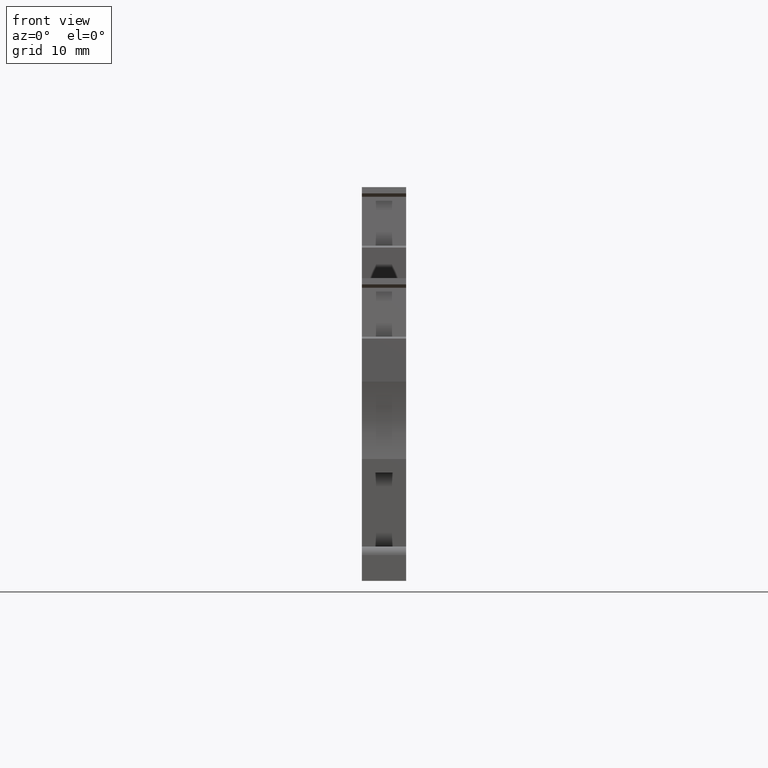
[diagram: clean part render]
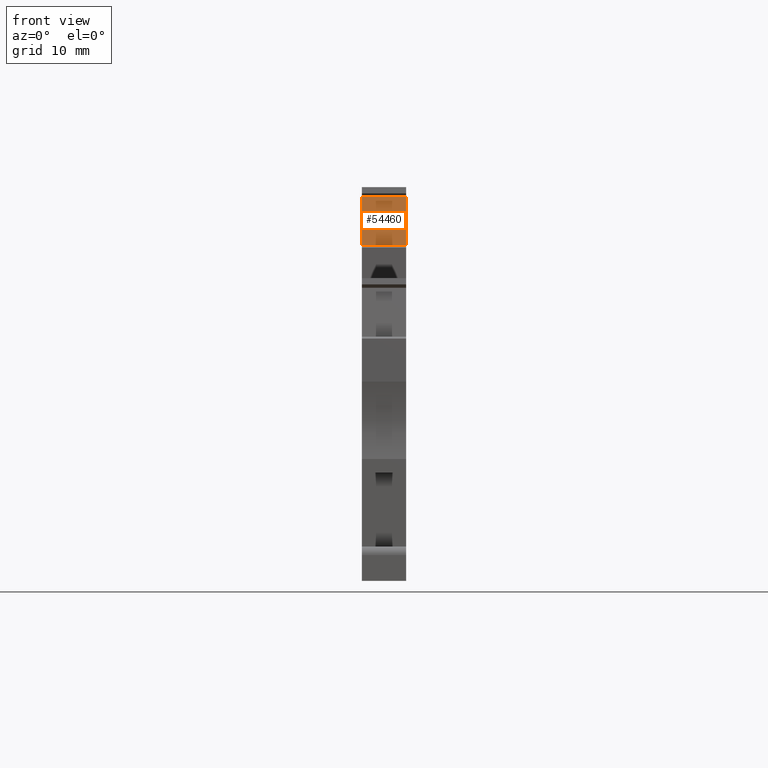
[diagram: same view with one face highlighted and labeled with its STEP entity id]
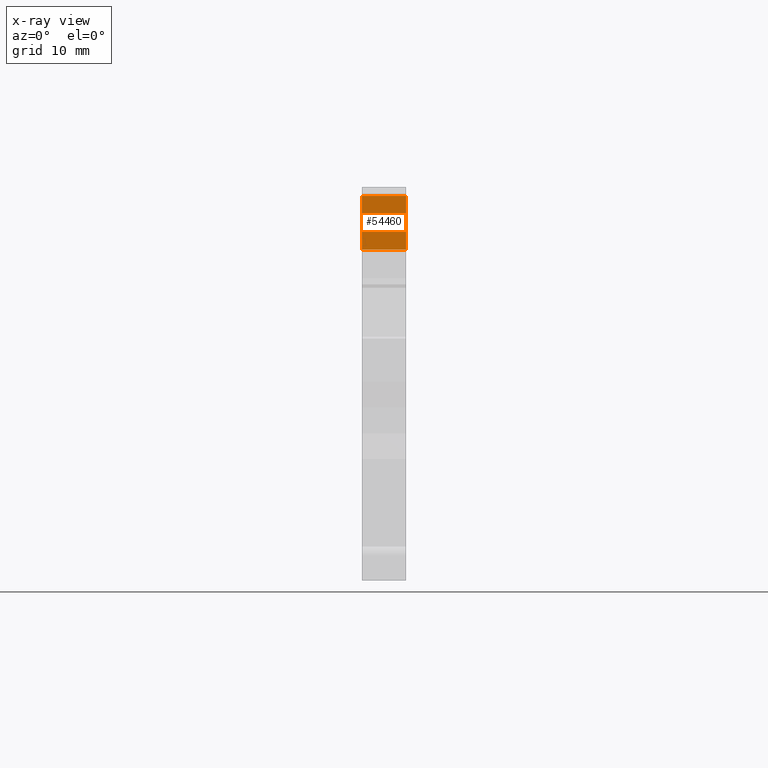
[diagram: x-ray of the same camera — body ghosted, the highlighted face saturated]
A machine part, front view. The second image highlights one B-rep face of the part: STEP entity #54460.
The next image is the same camera in x-ray: the body ghosted, the highlighted face saturated — about 0% of this face is hidden behind the body in this view.
In plain terms, the highlighted planar face has unit normal (-0, -0.9848, 0.1736).
Its self-contained STEP definition (entity closure, byte-faithful):
#2180=CARTESIAN_POINT('',(151.456226476328,41.3083312568005,48.52));
#2190=VERTEX_POINT('',#2180);
#2220=CARTESIAN_POINT('',(141.496435717659,-15.176449,48.52));
#2230=DIRECTION('',(0.173648177667041,0.984807753012189,0.));
#2240=VECTOR('',#2230,1.);
#2250=LINE('',#2220,#2240);
#2260=CARTESIAN_POINT('',(150.357901752584,35.0794222189993,48.52));
#2270=VERTEX_POINT('',#2260);
#2280=EDGE_CURVE('',#2270,#2190,#2250,.T.);
#12030=CARTESIAN_POINT('',(150.357901752584,35.0794222189993,
53.6699999999994));
#12040=VERTEX_POINT('',#12030);
#12070=CARTESIAN_POINT('',(141.496435717659,-15.176449,53.6699999999994)
);
#12080=DIRECTION('',(0.173648177667041,0.984807753012189,0.));
#12090=VECTOR('',#12080,1.);
#12100=LINE('',#12070,#12090);
#12110=CARTESIAN_POINT('',(151.456226476328,41.3083312568005,
53.6699999999994));
#12120=VERTEX_POINT('',#12110);
#12130=EDGE_CURVE('',#12040,#12120,#12100,.T.);
#53870=CARTESIAN_POINT('',(150.357901752584,35.0794222189993,53.67));
#53880=DIRECTION('',(0.,0.,-1.));
#53890=VECTOR('',#53880,1.);
#53900=LINE('',#53870,#53890);
#53910=EDGE_CURVE('',#12040,#2270,#53900,.T.);
#54300=CARTESIAN_POINT('',(151.369402387494,40.8159273802915,
53.6699999999994));
#54310=DIRECTION('',(-0.984807753012189,0.173648177667041,0.));
#54320=DIRECTION('',(0.173648177667041,0.984807753012189,0.));
#54330=AXIS2_PLACEMENT_3D('',#54300,#54310,#54320);
#54340=PLANE('',#54330);
#54350=CARTESIAN_POINT('',(151.456226476328,41.3083312568005,53.67));
#54360=DIRECTION('',(0.,0.,-1.));
#54370=VECTOR('',#54360,1.);
#54380=LINE('',#54350,#54370);
#54390=EDGE_CURVE('',#12120,#2190,#54380,.T.);
#54400=ORIENTED_EDGE('',*,*,#54390,.T.);
#54410=ORIENTED_EDGE('',*,*,#12130,.T.);
#54420=ORIENTED_EDGE('',*,*,#53910,.F.);
#54430=ORIENTED_EDGE('',*,*,#2280,.F.);
#54440=EDGE_LOOP('',(#54430,#54420,#54410,#54400));
#54450=FACE_OUTER_BOUND('',#54440,.T.);
#54460=ADVANCED_FACE('',(#54450),#54340,.T.);